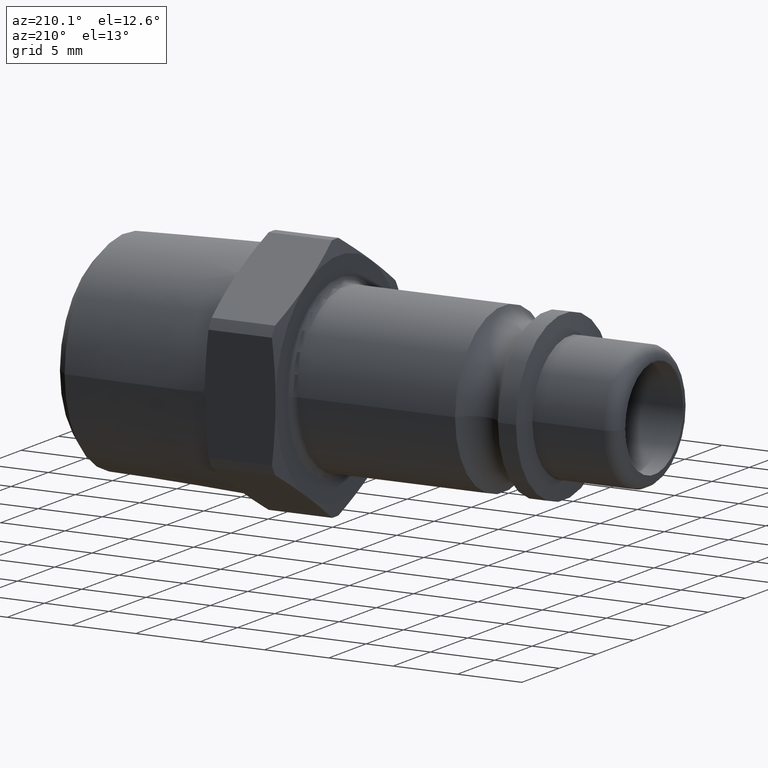
[diagram: clean part render]
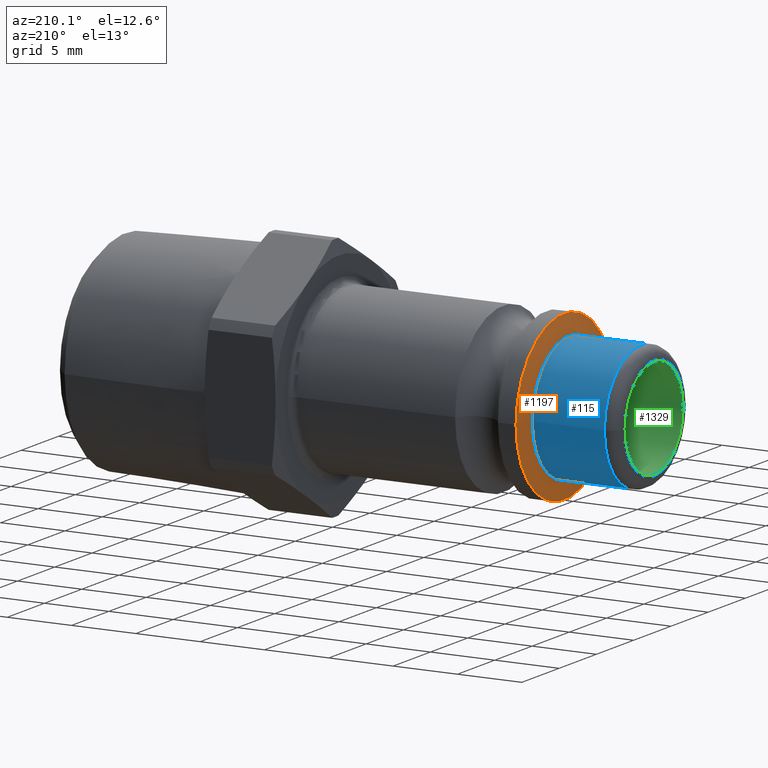
[diagram: same view with three faces highlighted in distinct colors, each labeled with its STEP entity id]
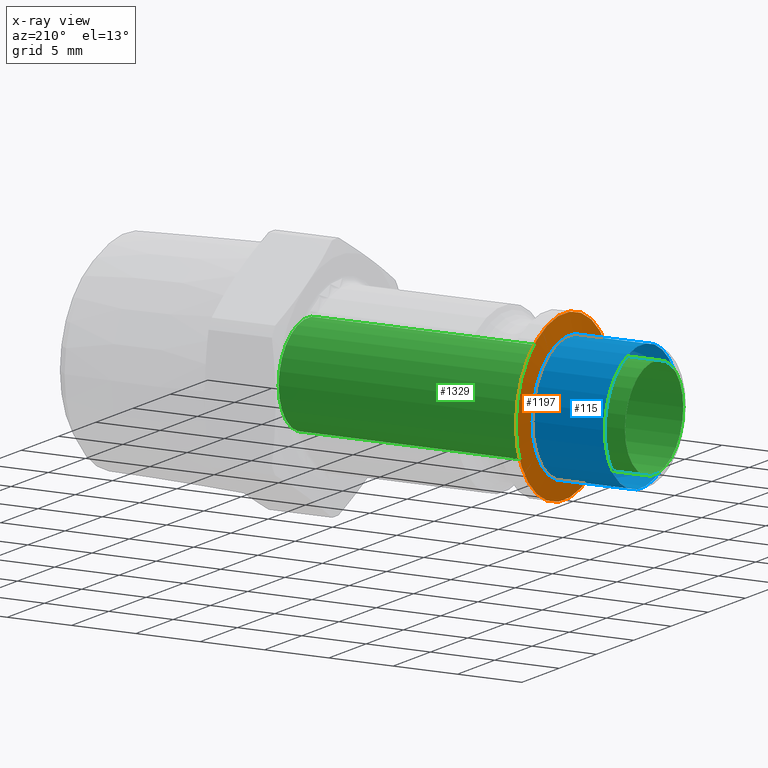
[diagram: x-ray of the same camera — body ghosted, the three highlighted faces saturated]
A machine part, auxiliary view with three faces highlighted in distinct colors.
The next image is the same camera in x-ray (body ghosted, the three faces saturated) — at least one of them is partly hidden behind the body in this view.
Their STEP definitions:

[orange] entity #1197 — the highlighted conical surface has half-angle 75 deg.
#101=CARTESIAN_POINT('',(6.6,4.950000000000002,0.0));
#102=VERTEX_POINT('',#101);
#103=CARTESIAN_POINT('',(6.6,0.0,0.0));
#104=DIRECTION('',(1.0,0.0,0.0));
#105=DIRECTION('',(0.0,1.0,0.0));
#106=AXIS2_PLACEMENT_3D('',#103,#104,#105);
#107=CIRCLE('',#106,4.950000000000002);
#108=EDGE_CURVE('',#102,#102,#107,.T.);
#1178=CARTESIAN_POINT('',(6.800961894323342,0.0,0.0));
#1179=DIRECTION('',(1.0,0.0,0.0));
#1180=DIRECTION('',(0.0,1.0,0.0));
#1181=AXIS2_PLACEMENT_3D('',#1178,#1179,#1180);
#1182=CONICAL_SURFACE('',#1181,5.700000000000001,74.999999999999957);
#1183=CARTESIAN_POINT('',(7.001923788646685,6.45,0.0));
#1184=VERTEX_POINT('',#1183);
#1185=CARTESIAN_POINT('',(7.001923788646685,0.0,0.0));
#1186=DIRECTION('',(1.0,0.0,0.0));
#1187=DIRECTION('',(0.0,1.0,0.0));
#1188=AXIS2_PLACEMENT_3D('',#1185,#1186,#1187);
#1189=CIRCLE('',#1188,6.45);
#1190=EDGE_CURVE('',#1184,#1184,#1189,.T.);
#1191=ORIENTED_EDGE('',*,*,#1190,.F.);
#1192=EDGE_LOOP('',(#1191));
#1193=FACE_OUTER_BOUND('',#1192,.T.);
#1194=ORIENTED_EDGE('',*,*,#108,.T.);
#1195=EDGE_LOOP('',(#1194));
#1196=FACE_BOUND('',#1195,.T.);
#1197=ADVANCED_FACE('',(#1193,#1196),#1182,.T.);

[blue] entity #115 — the highlighted cylindrical surface (bore or boss wall) has radius 4.95 mm, axis along (1, 0, 0).
#84=CARTESIAN_POINT('',(1.0,4.950000000000001,-1.212400E-015));
#85=VERTEX_POINT('',#84);
#86=CARTESIAN_POINT('',(1.0,0.0,0.0));
#87=DIRECTION('',(-1.0,0.0,0.0));
#88=DIRECTION('',(0.0,-1.0,0.0));
#89=AXIS2_PLACEMENT_3D('',#86,#87,#88);
#90=CIRCLE('',#89,4.950000000000001);
#91=EDGE_CURVE('',#85,#85,#90,.T.);
#96=CARTESIAN_POINT('',(3.299999999999999,0.0,0.0));
#97=DIRECTION('',(1.0,0.0,0.0));
#98=DIRECTION('',(0.0,1.0,0.0));
#99=AXIS2_PLACEMENT_3D('',#96,#97,#98);
#100=CYLINDRICAL_SURFACE('',#99,4.950000000000001);
#101=CARTESIAN_POINT('',(6.6,4.950000000000002,0.0));
#102=VERTEX_POINT('',#101);
#103=CARTESIAN_POINT('',(6.6,0.0,0.0));
#104=DIRECTION('',(1.0,0.0,0.0));
#105=DIRECTION('',(0.0,1.0,0.0));
#106=AXIS2_PLACEMENT_3D('',#103,#104,#105);
#107=CIRCLE('',#106,4.950000000000002);
#108=EDGE_CURVE('',#102,#102,#107,.T.);
#109=ORIENTED_EDGE('',*,*,#108,.F.);
#110=EDGE_LOOP('',(#109));
#111=FACE_OUTER_BOUND('',#110,.T.);
#112=ORIENTED_EDGE('',*,*,#91,.F.);
#113=EDGE_LOOP('',(#112));
#114=FACE_BOUND('',#113,.T.);
#115=ADVANCED_FACE('',(#111,#114),#100,.T.);

[green] entity #1329 — the highlighted cylindrical surface (bore or boss wall) has radius 3.9 mm, axis along (1, 0, 0).
#124=CARTESIAN_POINT('',(0.0,3.899999999999995,0.0));
#125=VERTEX_POINT('',#124);
#126=CARTESIAN_POINT('',(0.0,0.0,0.0));
#127=DIRECTION('',(1.0,0.0,0.0));
#128=DIRECTION('',(0.0,1.0,0.0));
#129=AXIS2_PLACEMENT_3D('',#126,#127,#128);
#130=CIRCLE('',#129,3.899999999999995);
#131=EDGE_CURVE('',#125,#125,#130,.T.);
#1303=CARTESIAN_POINT('',(26.931902001999198,3.900000000000005,0.0));
#1304=VERTEX_POINT('',#1303);
#1305=CARTESIAN_POINT('',(26.931902001999198,0.0,0.0));
#1306=DIRECTION('',(1.0,0.0,0.0));
#1307=DIRECTION('',(0.0,1.0,0.0));
#1308=AXIS2_PLACEMENT_3D('',#1305,#1306,#1307);
#1309=CIRCLE('',#1308,3.900000000000005);
#1310=EDGE_CURVE('',#1304,#1304,#1309,.T.);
#1318=CARTESIAN_POINT('',(13.465951000999599,0.0,0.0));
#1319=DIRECTION('',(1.0,0.0,0.0));
#1320=DIRECTION('',(0.0,1.0,0.0));
#1321=AXIS2_PLACEMENT_3D('',#1318,#1319,#1320);
#1322=CYLINDRICAL_SURFACE('',#1321,3.9);
#1323=ORIENTED_EDGE('',*,*,#131,.F.);
#1324=EDGE_LOOP('',(#1323));
#1325=FACE_OUTER_BOUND('',#1324,.T.);
#1326=ORIENTED_EDGE('',*,*,#1310,.T.);
#1327=EDGE_LOOP('',(#1326));
#1328=FACE_BOUND('',#1327,.T.);
#1329=ADVANCED_FACE('',(#1325,#1328),#1322,.F.);